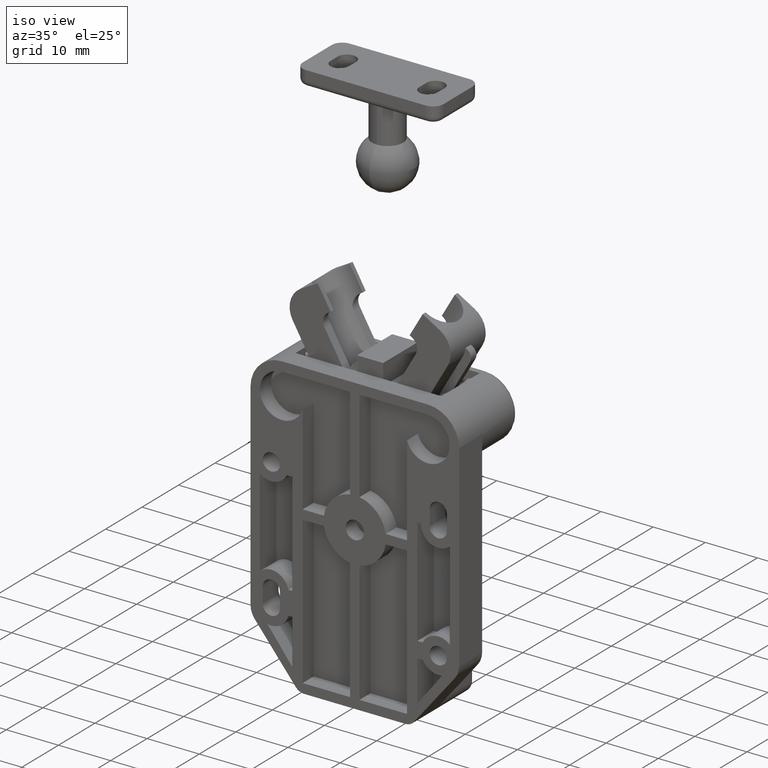
[diagram: clean part render]
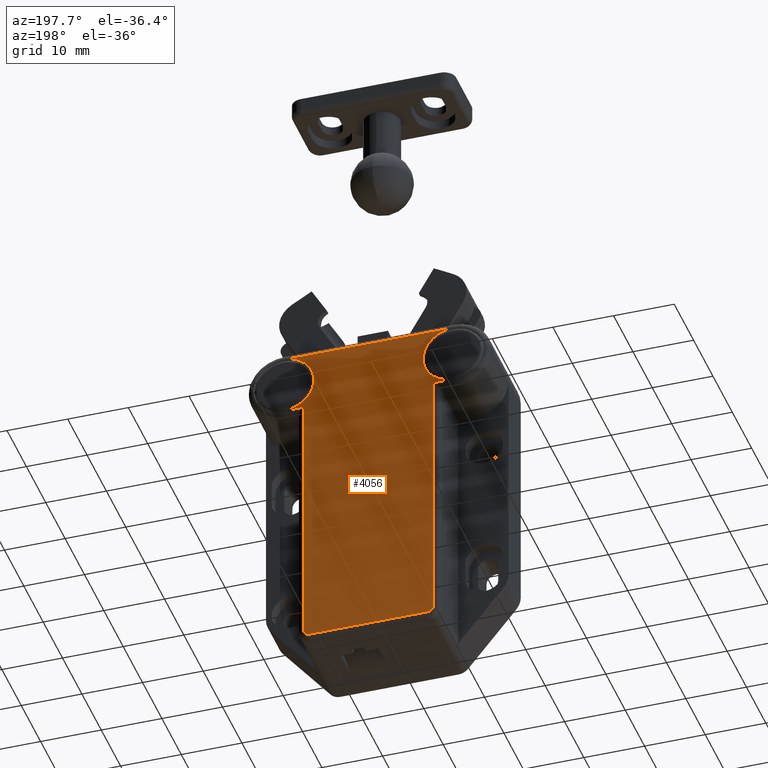
[diagram: tour spotlight — one face highlighted and labeled with its STEP entity id]
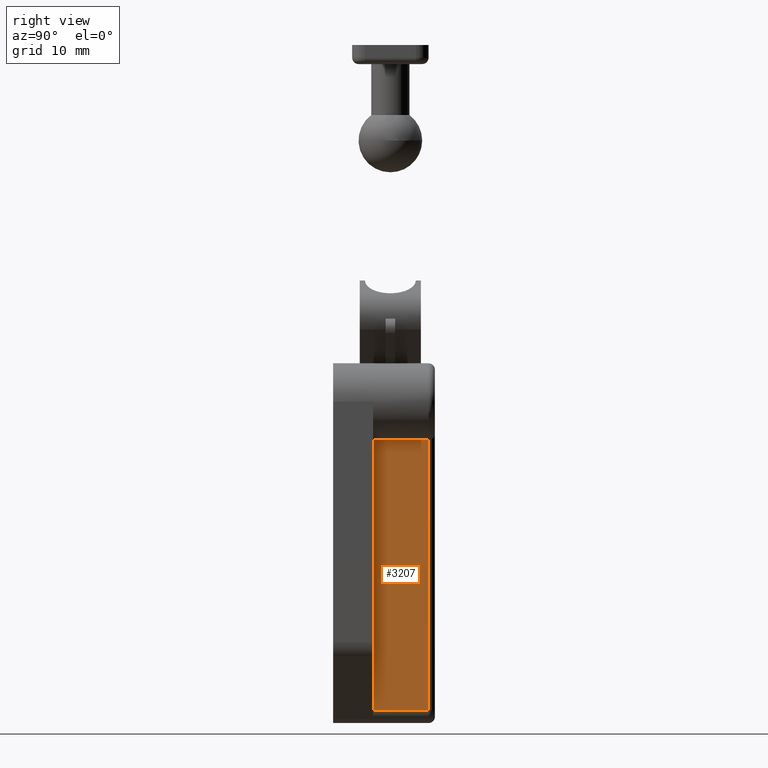
[diagram: tour spotlight — one face highlighted and labeled with its STEP entity id]
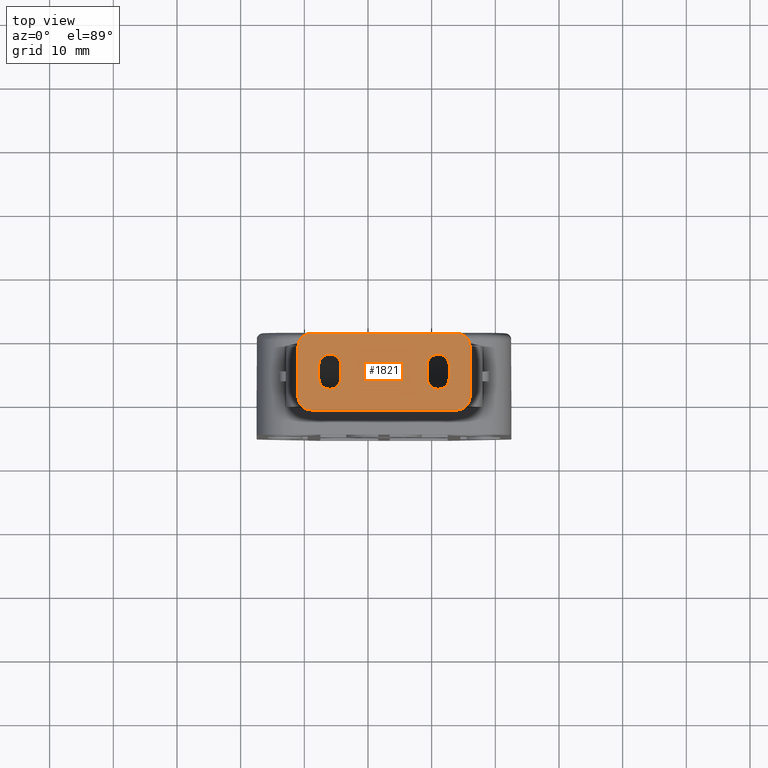
[diagram: tour spotlight — one face highlighted and labeled with its STEP entity id]
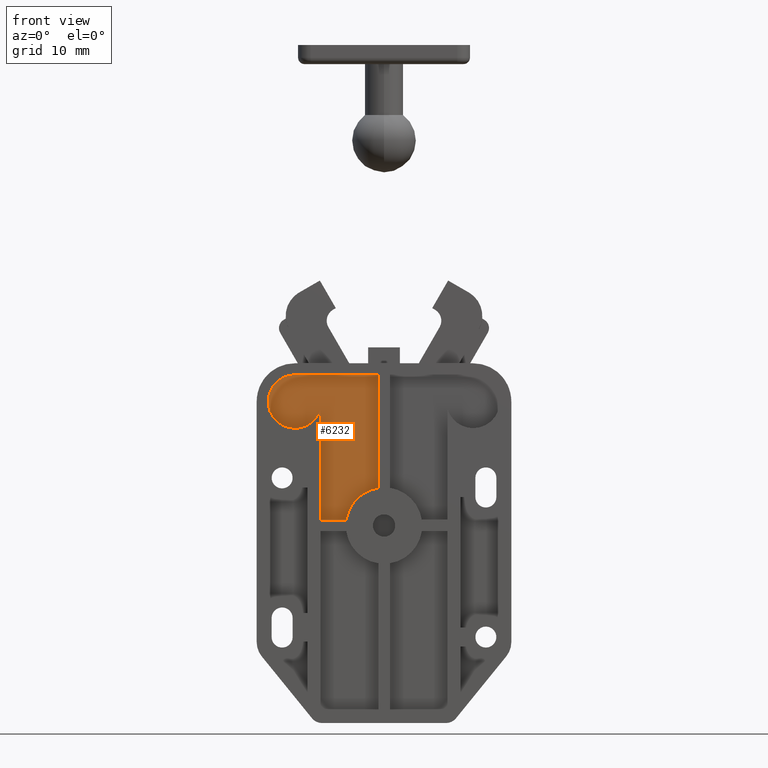
[diagram: tour spotlight — one face highlighted and labeled with its STEP entity id]
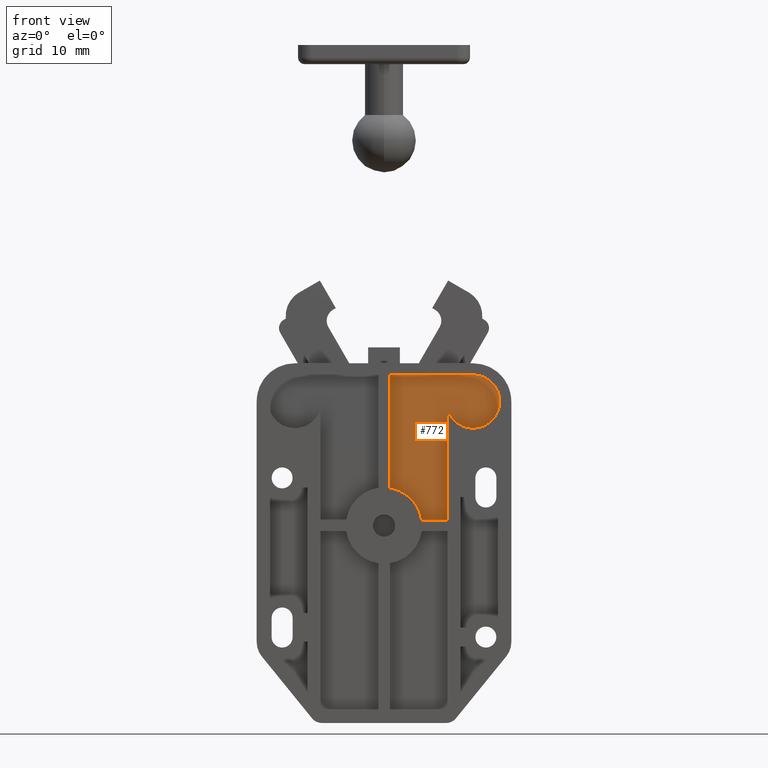
[diagram: tour spotlight — one face highlighted and labeled with its STEP entity id]
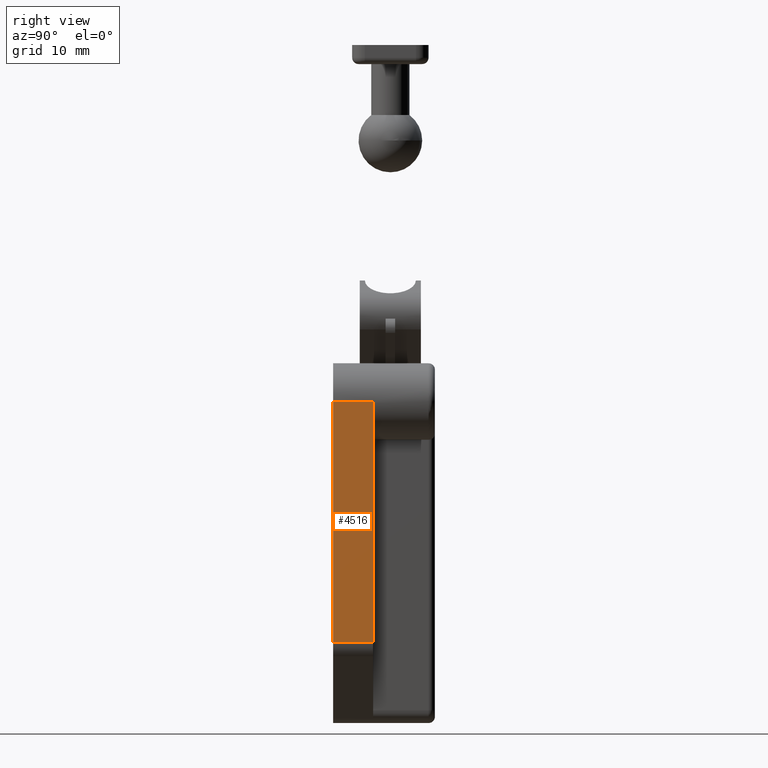
[diagram: tour spotlight — one face highlighted and labeled with its STEP entity id]
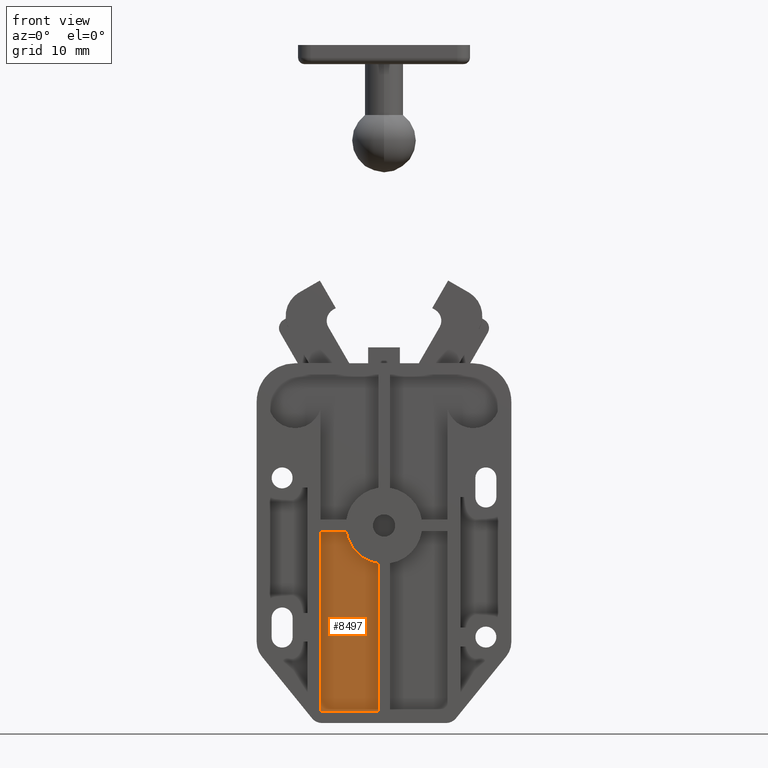
[diagram: tour spotlight — one face highlighted and labeled with its STEP entity id]
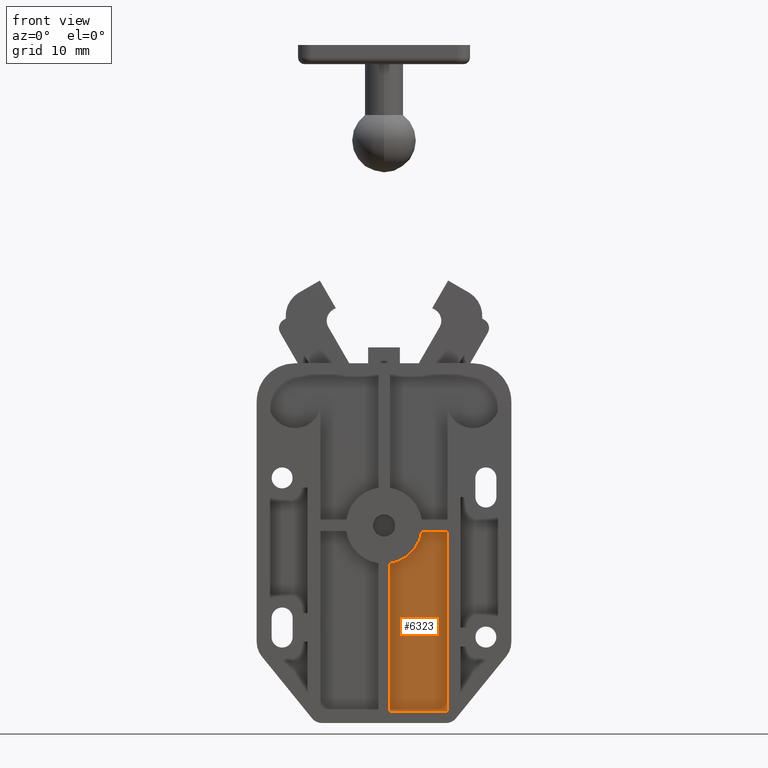
[diagram: tour spotlight — one face highlighted and labeled with its STEP entity id]
A machine part: a face-by-face anatomy tour. The part has 293 B-rep faces; the first image is the clean iso view, then the 8 largest visible faces are spotlighted one at a time (largest first), each with its STEP entity span.

Face 1 — auxiliary view, entity #4056. In plain terms, the highlighted planar face has unit normal (0, -1, -0).
Definition (entity closure, byte-faithful):
#63 = CIRCLE ( 'NONE', #2562, 4.999999999999726400 ) ;
#69 = AXIS2_PLACEMENT_3D ( 'NONE', #387, #5206, #1078 ) ;
#123 = DIRECTION ( 'NONE',  ( -1.000000000000000000, 0.0000000000000000000, 0.0000000000000000000 ) ) ;
#158 = ORIENTED_EDGE ( 'NONE', *, *, #5685, .F. ) ;
#161 = DIRECTION ( 'NONE',  ( 1.000000000000000000, 1.224510688924805600E-016, 0.0000000000000000000 ) ) ;
#177 = AXIS2_PLACEMENT_3D ( 'NONE', #3411, #5731, #123 ) ;
#289 = EDGE_CURVE ( 'NONE', #2306, #7049, #8553, .T. ) ;
#342 = AXIS2_PLACEMENT_3D ( 'NONE', #7529, #3380, #8229 ) ;
#352 = ORIENTED_EDGE ( 'NONE', *, *, #1644, .T. ) ;
#387 = CARTESIAN_POINT ( 'NONE',  ( 2.499599999999999600, 9.750000000000213200, 16.00000000000000000 ) ) ;
#388 = VERTEX_POINT ( 'NONE', #3801 ) ;
#394 = DIRECTION ( 'NONE',  ( -1.000000000000000000, 0.0000000000000000000, 0.0000000000000000000 ) ) ;
#472 = CIRCLE ( 'NONE', #6629, 4.999999999999726400 ) ;
#512 = DIRECTION ( 'NONE',  ( -0.0000000000000000000, -0.0000000000000000000, 1.000000000000000000 ) ) ;
#517 = CARTESIAN_POINT ( 'NONE',  ( 2.499600000000006300, 10.75000000000021700, 16.00000000000000000 ) ) ;
#536 = LINE ( 'NONE', #3874, #747 ) ;
#656 = AXIS2_PLACEMENT_3D ( 'NONE', #6320, #2870, #1356 ) ;
#747 = VECTOR ( 'NONE', #8232, 1000.000000000000000 ) ;
#851 = EDGE_CURVE ( 'NONE', #1639, #2233, #536, .T. ) ;
#911 = VERTEX_POINT ( 'NONE', #3838 ) ;
#933 = CARTESIAN_POINT ( 'NONE',  ( 1.499599999999996700, -9.749999999999758400, 16.00000000000000000 ) ) ;
#1009 = EDGE_CURVE ( 'NONE', #5705, #7769, #4951, .T. ) ;
#1078 = DIRECTION ( 'NONE',  ( -1.000000000000000000, 0.0000000000000000000, 0.0000000000000000000 ) ) ;
#1140 = CARTESIAN_POINT ( 'NONE',  ( 2.499600000000013800, -10.74999999999976600, 16.00000000000000000 ) ) ;
#1356 = DIRECTION ( 'NONE',  ( -1.000000000000000000, -1.040834085586084800E-015, 0.0000000000000000000 ) ) ;
#1357 = EDGE_CURVE ( 'NONE', #7049, #5705, #3178, .T. ) ;
#1401 = VERTEX_POINT ( 'NONE', #8539 ) ;
#1496 = EDGE_CURVE ( 'NONE', #2233, #8057, #7175, .T. ) ;
#1612 = CARTESIAN_POINT ( 'NONE',  ( 51.00000000000000000, 14.00000000000022000, 16.00000000000000000 ) ) ;
#1621 = ORIENTED_EDGE ( 'NONE', *, *, #289, .T. ) ;
#1639 = VERTEX_POINT ( 'NONE', #5607 ) ;
#1644 = EDGE_CURVE ( 'NONE', #7769, #7383, #7706, .T. ) ;
#1673 = EDGE_CURVE ( 'NONE', #8127, #1639, #6092, .T. ) ;
#1709 = AXIS2_PLACEMENT_3D ( 'NONE', #7407, #8103, #3945 ) ;
#1859 = DIRECTION ( 'NONE',  ( 0.0000000000000000000, -1.000000000000000000, 0.0000000000000000000 ) ) ;
#1886 = ORIENTED_EDGE ( 'NONE', *, *, #2466, .F. ) ;
#2058 = ORIENTED_EDGE ( 'NONE', *, *, #851, .T. ) ;
#2210 = ORIENTED_EDGE ( 'NONE', *, *, #6385, .T. ) ;
#2233 = VERTEX_POINT ( 'NONE', #2248 ) ;
#2248 = CARTESIAN_POINT ( 'NONE',  ( 45.99959999999999400, 10.75000000000021700, 16.00000000000000000 ) ) ;
#2306 = VERTEX_POINT ( 'NONE', #933 ) ;
#2309 = DIRECTION ( 'NONE',  ( 1.000000000000000000, 0.0000000000000000000, 0.0000000000000000000 ) ) ;
#2464 = DIRECTION ( 'NONE',  ( 0.0000000000000000000, 0.0000000000000000000, 1.000000000000000000 ) ) ;
#2466 = EDGE_CURVE ( 'NONE', #8127, #911, #472, .T. ) ;
#2537 = DIRECTION ( 'NONE',  ( -0.0000000000000000000, -0.0000000000000000000, 1.000000000000000000 ) ) ;
#2562 = AXIS2_PLACEMENT_3D ( 'NONE', #1612, #6444, #2309 ) ;
#2572 = CARTESIAN_POINT ( 'NONE',  ( 55.99959999999999400, -13.93675571174168400, 16.00000000000000000 ) ) ;
#2696 = ORIENTED_EDGE ( 'NONE', *, *, #2872, .F. ) ;
#2870 = DIRECTION ( 'NONE',  ( 0.0000000000000000000, 0.0000000000000000000, 1.000000000000000000 ) ) ;
#2872 = EDGE_CURVE ( 'NONE', #911, #1401, #63, .T. ) ;
#2989 = EDGE_CURVE ( 'NONE', #8057, #8645, #6566, .T. ) ;
#3144 = CARTESIAN_POINT ( 'NONE',  ( 1.499599999999999400, 9.750000000000199000, 16.00000000000000000 ) ) ;
#3178 = LINE ( 'NONE', #3850, #4789 ) ;
#3251 = PLANE ( 'NONE',  #1709 ) ;
#3380 = DIRECTION ( 'NONE',  ( -0.0000000000000000000, -0.0000000000000000000, 1.000000000000000000 ) ) ;
#3411 = CARTESIAN_POINT ( 'NONE',  ( 50.99960000000000100, -14.00000000000000000, 16.00000000000000000 ) ) ;
#3515 = DIRECTION ( 'NONE',  ( 0.0000000000000000000, 1.000000000000000000, 0.0000000000000000000 ) ) ;
#3705 = CARTESIAN_POINT ( 'NONE',  ( 45.99959999999999400, -13.99999999999976400, 16.00000000000000000 ) ) ;
#3801 = CARTESIAN_POINT ( 'NONE',  ( 46.00000000000027000, -13.99999999999975800, 16.00000000000000000 ) ) ;
#3838 = CARTESIAN_POINT ( 'NONE',  ( 46.00000000000027000, 14.00000000000022000, 16.00000000000000000 ) ) ;
#3850 = CARTESIAN_POINT ( 'NONE',  ( 50.99959999999999400, -10.74999999999976000, 16.00000000000000000 ) ) ;
#3874 = CARTESIAN_POINT ( 'NONE',  ( 45.99959999999991600, -13.99999999999975000, 16.00000000000000000 ) ) ;
#3939 = CARTESIAN_POINT ( 'NONE',  ( 50.99980000065051700, 18.99999999599997500, 16.00000000000000000 ) ) ;
#3945 = DIRECTION ( 'NONE',  ( -1.000000000000000000, 0.0000000000000000000, 0.0000000000000000000 ) ) ;
#4034 = AXIS2_PLACEMENT_3D ( 'NONE', #4623, #512, #5330 ) ;
#4056 = ADVANCED_FACE ( 'NONE', ( #7082 ), #3251, .F. ) ;
#4194 = ORIENTED_EDGE ( 'NONE', *, *, #1496, .T. ) ;
#4215 = LINE ( 'NONE', #7671, #6289 ) ;
#4218 = CIRCLE ( 'NONE', #4034, 4.999999999999726400 ) ;
#4299 = EDGE_LOOP ( 'NONE', ( #5245, #2210, #2696, #1886, #6159, #2058, #4194, #8235, #8885, #1621, #8895, #4638, #352, #158 ) ) ;
#4595 = CARTESIAN_POINT ( 'NONE',  ( 50.99959999999999400, 10.75000000000021700, 16.00000000000000000 ) ) ;
#4623 = CARTESIAN_POINT ( 'NONE',  ( 51.00000000000000000, -13.99999999999975800, 16.00000000000000000 ) ) ;
#4628 = VECTOR ( 'NONE', #1859, 1000.000000000000000 ) ;
#4638 = ORIENTED_EDGE ( 'NONE', *, *, #1009, .T. ) ;
#4789 = VECTOR ( 'NONE', #161, 1000.000000000000000 ) ;
#4951 = LINE ( 'NONE', #3705, #8435 ) ;
#5111 = AXIS2_PLACEMENT_3D ( 'NONE', #6127, #2464, #394 ) ;
#5206 = DIRECTION ( 'NONE',  ( 0.0000000000000000000, 0.0000000000000000000, 1.000000000000000000 ) ) ;
#5245 = ORIENTED_EDGE ( 'NONE', *, *, #7203, .F. ) ;
#5330 = DIRECTION ( 'NONE',  ( 1.000000000000000000, 0.0000000000000000000, 0.0000000000000000000 ) ) ;
#5607 = CARTESIAN_POINT ( 'NONE',  ( 45.99960000000000100, 14.00000000000017900, 16.00000000000000000 ) ) ;
#5685 = EDGE_CURVE ( 'NONE', #388, #7383, #4218, .T. ) ;
#5705 = VERTEX_POINT ( 'NONE', #6020 ) ;
#5731 = DIRECTION ( 'NONE',  ( 0.0000000000000000000, 0.0000000000000000000, 1.000000000000000000 ) ) ;
#5968 = CIRCLE ( 'NONE', #342, 4.999999999999726400 ) ;
#5993 = CARTESIAN_POINT ( 'NONE',  ( 1.499599999999996700, -13.99999999999976400, 16.00000000000000000 ) ) ;
#6020 = CARTESIAN_POINT ( 'NONE',  ( 45.99959999999999400, -10.74999999999976000, 16.00000000000000000 ) ) ;
#6092 = CIRCLE ( 'NONE', #656, 4.999999999999997300 ) ;
#6127 = CARTESIAN_POINT ( 'NONE',  ( 2.499599999999999200, -9.749999999999765500, 16.00000000000000000 ) ) ;
#6159 = ORIENTED_EDGE ( 'NONE', *, *, #1673, .T. ) ;
#6289 = VECTOR ( 'NONE', #3515, 1000.000000000000000 ) ;
#6320 = CARTESIAN_POINT ( 'NONE',  ( 50.99960000000000100, 14.00000000000000000, 16.00000000000000000 ) ) ;
#6356 = CARTESIAN_POINT ( 'NONE',  ( 45.99959999999999400, -13.99999999999976400, 16.00000000000000000 ) ) ;
#6385 = EDGE_CURVE ( 'NONE', #8169, #1401, #4215, .T. ) ;
#6444 = DIRECTION ( 'NONE',  ( -0.0000000000000000000, -0.0000000000000000000, 1.000000000000000000 ) ) ;
#6566 = CIRCLE ( 'NONE', #69, 1.000000000000000000 ) ;
#6629 = AXIS2_PLACEMENT_3D ( 'NONE', #6674, #2537, #7372 ) ;
#6674 = CARTESIAN_POINT ( 'NONE',  ( 51.00000000000000000, 14.00000000000022000, 16.00000000000000000 ) ) ;
#7049 = VERTEX_POINT ( 'NONE', #1140 ) ;
#7082 = FACE_OUTER_BOUND ( 'NONE', #4299, .T. ) ;
#7175 = LINE ( 'NONE', #4595, #8820 ) ;
#7203 = EDGE_CURVE ( 'NONE', #8169, #388, #5968, .T. ) ;
#7372 = DIRECTION ( 'NONE',  ( 1.000000000000000000, 0.0000000000000000000, 0.0000000000000000000 ) ) ;
#7383 = VERTEX_POINT ( 'NONE', #8412 ) ;
#7407 = CARTESIAN_POINT ( 'NONE',  ( 50.99959999999999400, -13.99999999999976400, 16.00000000000000000 ) ) ;
#7529 = CARTESIAN_POINT ( 'NONE',  ( 51.00000000000000000, -13.99999999999975800, 16.00000000000000000 ) ) ;
#7671 = CARTESIAN_POINT ( 'NONE',  ( 55.99959999999999400, 14.00000000000021500, 16.00000000000000000 ) ) ;
#7706 = CIRCLE ( 'NONE', #177, 4.999999999999997300 ) ;
#7751 = DIRECTION ( 'NONE',  ( -1.000000000000000000, 0.0000000000000000000, 0.0000000000000000000 ) ) ;
#7769 = VERTEX_POINT ( 'NONE', #6356 ) ;
#7835 = DIRECTION ( 'NONE',  ( 0.0000000000000000000, -1.000000000000000000, 0.0000000000000000000 ) ) ;
#8057 = VERTEX_POINT ( 'NONE', #517 ) ;
#8103 = DIRECTION ( 'NONE',  ( -0.0000000000000000000, 0.0000000000000000000, -1.000000000000000000 ) ) ;
#8127 = VERTEX_POINT ( 'NONE', #3939 ) ;
#8169 = VERTEX_POINT ( 'NONE', #2572 ) ;
#8229 = DIRECTION ( 'NONE',  ( 1.000000000000000000, 0.0000000000000000000, 0.0000000000000000000 ) ) ;
#8232 = DIRECTION ( 'NONE',  ( -3.083952846180988100E-015, -1.000000000000000000, 0.0000000000000000000 ) ) ;
#8235 = ORIENTED_EDGE ( 'NONE', *, *, #2989, .T. ) ;
#8330 = LINE ( 'NONE', #5993, #4628 ) ;
#8412 = CARTESIAN_POINT ( 'NONE',  ( 50.99980000641847500, -18.99999999599974400, 16.00000000000000000 ) ) ;
#8435 = VECTOR ( 'NONE', #7835, 1000.000000000000000 ) ;
#8539 = CARTESIAN_POINT ( 'NONE',  ( 55.99959999999999400, 13.93675571174214400, 16.00000000000000000 ) ) ;
#8553 = CIRCLE ( 'NONE', #5111, 1.000000000000000000 ) ;
#8645 = VERTEX_POINT ( 'NONE', #3144 ) ;
#8717 = EDGE_CURVE ( 'NONE', #8645, #2306, #8330, .T. ) ;
#8820 = VECTOR ( 'NONE', #7751, 1000.000000000000000 ) ;
#8885 = ORIENTED_EDGE ( 'NONE', *, *, #8717, .T. ) ;
#8895 = ORIENTED_EDGE ( 'NONE', *, *, #1357, .T. ) ;

Face 2 — right view, entity #3207. In plain terms, the highlighted planar face has unit normal (-1, -0, 0).
Definition (entity closure, byte-faithful):
#24 = VECTOR ( 'NONE', #2225, 1000.000000000000000 ) ;
#104 = EDGE_LOOP ( 'NONE', ( #3995, #4023, #1525, #7930 ) ) ;
#355 = VERTEX_POINT ( 'NONE', #3010 ) ;
#366 = CARTESIAN_POINT ( 'NONE',  ( 2.499600000000013400, 11.75000000000021300, 15.00000000000000000 ) ) ;
#511 = CARTESIAN_POINT ( 'NONE',  ( 2.499600000000013400, 11.75000000000021300, 16.00000000000000000 ) ) ;
#1170 = FACE_OUTER_BOUND ( 'NONE', #104, .T. ) ;
#1525 = ORIENTED_EDGE ( 'NONE', *, *, #6835, .T. ) ;
#1556 = CARTESIAN_POINT ( 'NONE',  ( 44.99959999999999400, 11.75000000000021300, 16.00000000000000000 ) ) ;
#2057 = VECTOR ( 'NONE', #3241, 1000.000000000000000 ) ;
#2225 = DIRECTION ( 'NONE',  ( -0.0000000000000000000, -0.0000000000000000000, -1.000000000000000000 ) ) ;
#2292 = LINE ( 'NONE', #1556, #24 ) ;
#2662 = DIRECTION ( 'NONE',  ( 0.0000000000000000000, -0.0000000000000000000, -1.000000000000000000 ) ) ;
#2799 = DIRECTION ( 'NONE',  ( 1.000000000000000000, -0.0000000000000000000, -0.0000000000000000000 ) ) ;
#3010 = CARTESIAN_POINT ( 'NONE',  ( 2.499600000000013800, 11.74999999999976600, 6.300000000000158800 ) ) ;
#3041 = LINE ( 'NONE', #4157, #4440 ) ;
#3207 = ADVANCED_FACE ( 'NONE', ( #1170 ), #8853, .F. ) ;
#3241 = DIRECTION ( 'NONE',  ( -0.0000000000000000000, -0.0000000000000000000, -1.000000000000000000 ) ) ;
#3573 = VECTOR ( 'NONE', #8733, 1000.000000000000000 ) ;
#3847 = CARTESIAN_POINT ( 'NONE',  ( 2.499600000000013800, 11.74999999999976600, 6.300000000000158800 ) ) ;
#3995 = ORIENTED_EDGE ( 'NONE', *, *, #8132, .F. ) ;
#4023 = ORIENTED_EDGE ( 'NONE', *, *, #6372, .T. ) ;
#4157 = CARTESIAN_POINT ( 'NONE',  ( 2.499600000000013400, 11.75000000000021300, 15.00000000000000000 ) ) ;
#4440 = VECTOR ( 'NONE', #2799, 1000.000000000000000 ) ;
#4449 = VERTEX_POINT ( 'NONE', #4914 ) ;
#4914 = CARTESIAN_POINT ( 'NONE',  ( 44.99959999999999400, 11.74999999999976000, 6.300000000000158800 ) ) ;
#5292 = LINE ( 'NONE', #511, #2057 ) ;
#5411 = CARTESIAN_POINT ( 'NONE',  ( 2.499600000000013400, 11.75000000000021300, 16.00000000000000000 ) ) ;
#5430 = LINE ( 'NONE', #3847, #3573 ) ;
#5901 = CARTESIAN_POINT ( 'NONE',  ( 44.99959999999999400, 11.75000000000021300, 15.00000000000000000 ) ) ;
#6107 = VERTEX_POINT ( 'NONE', #5901 ) ;
#6372 = EDGE_CURVE ( 'NONE', #7934, #6107, #3041, .T. ) ;
#6797 = DIRECTION ( 'NONE',  ( 0.0000000000000000000, -1.000000000000000000, 0.0000000000000000000 ) ) ;
#6835 = EDGE_CURVE ( 'NONE', #6107, #4449, #2292, .T. ) ;
#7018 = EDGE_CURVE ( 'NONE', #4449, #355, #5430, .T. ) ;
#7930 = ORIENTED_EDGE ( 'NONE', *, *, #7018, .T. ) ;
#7934 = VERTEX_POINT ( 'NONE', #366 ) ;
#7972 = AXIS2_PLACEMENT_3D ( 'NONE', #5411, #6797, #2662 ) ;
#8132 = EDGE_CURVE ( 'NONE', #7934, #355, #5292, .T. ) ;
#8733 = DIRECTION ( 'NONE',  ( -1.000000000000000000, 1.224510688924805600E-016, -0.0000000000000000000 ) ) ;
#8853 = PLANE ( 'NONE',  #7972 ) ;

Face 3 — top view, entity #1821. In plain terms, the highlighted planar face has unit normal (-0, 0, -1).
Definition (entity closure, byte-faithful):
#2 = DIRECTION ( 'NONE',  ( 1.000000000000000000, -0.0000000000000000000, -0.0000000000000000000 ) ) ;
#80 = LINE ( 'NONE', #4538, #5384 ) ;
#129 = ORIENTED_EDGE ( 'NONE', *, *, #921, .T. ) ;
#265 = CARTESIAN_POINT ( 'NONE',  ( 122.1906854006600000, 145.7423681696269900, 4.999999999999889900 ) ) ;
#282 = CARTESIAN_POINT ( 'NONE',  ( 122.1906854006600000, 118.7423681696272000, 13.00000000000002100 ) ) ;
#302 = ORIENTED_EDGE ( 'NONE', *, *, #5066, .T. ) ;
#409 = DIRECTION ( 'NONE',  ( -1.000000000000000000, 0.0000000000000000000, 0.0000000000000000000 ) ) ;
#429 = AXIS2_PLACEMENT_3D ( 'NONE', #6768, #2626, #7456 ) ;
#476 = CARTESIAN_POINT ( 'NONE',  ( 122.1906854006600000, 138.9923681696272100, 9.999999999999889900 ) ) ;
#497 = AXIS2_PLACEMENT_3D ( 'NONE', #7296, #2444, #1752 ) ;
#500 = CARTESIAN_POINT ( 'NONE',  ( 122.1906854006600000, 123.7423681696272100, 9.999999999999889900 ) ) ;
#635 = VERTEX_POINT ( 'NONE', #3393 ) ;
#665 = EDGE_CURVE ( 'NONE', #3332, #4189, #2246, .T. ) ;
#735 = CARTESIAN_POINT ( 'NONE',  ( 122.1906854006600000, 143.7423681696269900, 2.999999999999889900 ) ) ;
#758 = EDGE_CURVE ( 'NONE', #2568, #1711, #8542, .T. ) ;
#779 = VERTEX_POINT ( 'NONE', #265 ) ;
#788 = EDGE_LOOP ( 'NONE', ( #1043, #6619, #129, #2095, #3521, #8567, #4824, #2368 ) ) ;
#835 = EDGE_CURVE ( 'NONE', #779, #5222, #8329, .T. ) ;
#885 = CARTESIAN_POINT ( 'NONE',  ( 122.1906854006600000, 145.7423681696269900, 13.00000000000002000 ) ) ;
#921 = EDGE_CURVE ( 'NONE', #2911, #6814, #80, .T. ) ;
#939 = AXIS2_PLACEMENT_3D ( 'NONE', #5931, #409, #3121 ) ;
#1043 = ORIENTED_EDGE ( 'NONE', *, *, #1578, .F. ) ;
#1190 = DIRECTION ( 'NONE',  ( 0.0000000000000000000, 0.0000000000000000000, -1.000000000000000000 ) ) ;
#1225 = VECTOR ( 'NONE', #2768, 1000.000000000000000 ) ;
#1494 = VERTEX_POINT ( 'NONE', #3767 ) ;
#1578 = EDGE_CURVE ( 'NONE', #7788, #1893, #6739, .T. ) ;
#1580 = AXIS2_PLACEMENT_3D ( 'NONE', #5530, #2, #8302 ) ;
#1697 = EDGE_CURVE ( 'NONE', #7788, #2911, #1989, .T. ) ;
#1706 = CARTESIAN_POINT ( 'NONE',  ( 122.1906854006600000, 145.7423681696269900, 2.999999999999889400 ) ) ;
#1711 = VERTEX_POINT ( 'NONE', #735 ) ;
#1715 = DIRECTION ( 'NONE',  ( 0.0000000000000000000, 0.0000000000000000000, -1.000000000000000000 ) ) ;
#1716 = CARTESIAN_POINT ( 'NONE',  ( 122.1906854006600000, 121.9923681696272000, 7.999999999999889000 ) ) ;
#1737 = LINE ( 'NONE', #6559, #7020 ) ;
#1750 = VERTEX_POINT ( 'NONE', #3589 ) ;
#1752 = DIRECTION ( 'NONE',  ( 0.0000000000000000000, 0.0000000000000000000, 1.000000000000000000 ) ) ;
#1821 = ADVANCED_FACE ( 'NONE', ( #3906, #7384, #7588 ), #2431, .F. ) ;
#1823 = EDGE_CURVE ( 'NONE', #6814, #2568, #5525, .T. ) ;
#1839 = CARTESIAN_POINT ( 'NONE',  ( 122.1906854006600200, 143.7423681696269900, 15.00000000000002000 ) ) ;
#1893 = VERTEX_POINT ( 'NONE', #1839 ) ;
#1918 = DIRECTION ( 'NONE',  ( -0.0000000000000000000, -0.0000000000000000000, 1.000000000000000000 ) ) ;
#1921 = EDGE_CURVE ( 'NONE', #635, #1494, #8718, .T. ) ;
#1989 = CIRCLE ( 'NONE', #1580, 2.000000000000000000 ) ;
#2095 = ORIENTED_EDGE ( 'NONE', *, *, #1823, .T. ) ;
#2246 = CIRCLE ( 'NONE', #7260, 1.749999999999994700 ) ;
#2312 = CARTESIAN_POINT ( 'NONE',  ( 122.1906854006600000, 143.7423681696269900, 13.00000000000002000 ) ) ;
#2368 = ORIENTED_EDGE ( 'NONE', *, *, #5482, .T. ) ;
#2423 = AXIS2_PLACEMENT_3D ( 'NONE', #6979, #2841, #7672 ) ;
#2431 = PLANE ( 'NONE',  #939 ) ;
#2444 = DIRECTION ( 'NONE',  ( 1.000000000000000000, -0.0000000000000000000, -0.0000000000000000000 ) ) ;
#2463 = VERTEX_POINT ( 'NONE', #3877 ) ;
#2540 = EDGE_CURVE ( 'NONE', #6144, #2463, #3270, .T. ) ;
#2568 = VERTEX_POINT ( 'NONE', #3999 ) ;
#2626 = DIRECTION ( 'NONE',  ( -1.000000000000000000, 0.0000000000000000000, 0.0000000000000000000 ) ) ;
#2768 = DIRECTION ( 'NONE',  ( 0.0000000000000000000, 0.0000000000000000000, -1.000000000000000000 ) ) ;
#2775 = DIRECTION ( 'NONE',  ( -1.000000000000000000, 0.0000000000000000000, 0.0000000000000000000 ) ) ;
#2796 = ORIENTED_EDGE ( 'NONE', *, *, #6740, .T. ) ;
#2833 = VECTOR ( 'NONE', #3516, 1000.000000000000000 ) ;
#2841 = DIRECTION ( 'NONE',  ( -1.000000000000000000, 0.0000000000000000000, 0.0000000000000000000 ) ) ;
#2853 = EDGE_CURVE ( 'NONE', #6001, #635, #7636, .T. ) ;
#2911 = VERTEX_POINT ( 'NONE', #282 ) ;
#2932 = CARTESIAN_POINT ( 'NONE',  ( 122.1906854006600000, 125.4923681696272000, 7.999999999999889000 ) ) ;
#2949 = CARTESIAN_POINT ( 'NONE',  ( 122.1906854006600200, 120.7423681696272000, 15.00000000000002000 ) ) ;
#2973 = AXIS2_PLACEMENT_3D ( 'NONE', #6923, #2775, #7623 ) ;
#2991 = DIRECTION ( 'NONE',  ( 0.0000000000000000000, 0.0000000000000000000, 1.000000000000000000 ) ) ;
#3004 = VECTOR ( 'NONE', #7206, 1000.000000000000000 ) ;
#3086 = CARTESIAN_POINT ( 'NONE',  ( 122.1906854006600000, 123.7423681696272100, 7.999999999999889000 ) ) ;
#3121 = DIRECTION ( 'NONE',  ( 0.0000000000000000000, 0.0000000000000000000, 1.000000000000000000 ) ) ;
#3270 = CIRCLE ( 'NONE', #429, 1.749999999999987600 ) ;
#3332 = VERTEX_POINT ( 'NONE', #1716 ) ;
#3354 = ORIENTED_EDGE ( 'NONE', *, *, #1921, .F. ) ;
#3393 = CARTESIAN_POINT ( 'NONE',  ( 122.1906854006600000, 125.4923681696272000, 9.999999999999889900 ) ) ;
#3516 = DIRECTION ( 'NONE',  ( -0.0000000000000000000, 1.000000000000000000, -0.0000000000000000000 ) ) ;
#3521 = ORIENTED_EDGE ( 'NONE', *, *, #758, .T. ) ;
#3589 = CARTESIAN_POINT ( 'NONE',  ( 122.1906854006600200, 138.9923681696272100, 7.999999999999889000 ) ) ;
#3645 = ORIENTED_EDGE ( 'NONE', *, *, #8575, .F. ) ;
#3679 = CARTESIAN_POINT ( 'NONE',  ( 122.1906854006600000, 143.7423681696269900, 4.999999999999889900 ) ) ;
#3729 = AXIS2_PLACEMENT_3D ( 'NONE', #2312, #7145, #2991 ) ;
#3759 = DIRECTION ( 'NONE',  ( 0.0000000000000000000, 0.0000000000000000000, -1.000000000000000000 ) ) ;
#3767 = CARTESIAN_POINT ( 'NONE',  ( 122.1906854006600000, 121.9923681696272000, 9.999999999999889900 ) ) ;
#3799 = EDGE_CURVE ( 'NONE', #1750, #6144, #6769, .T. ) ;
#3877 = CARTESIAN_POINT ( 'NONE',  ( 122.1906854006600200, 140.7423681696271800, 11.74999999999987700 ) ) ;
#3906 = FACE_BOUND ( 'NONE', #5939, .T. ) ;
#3999 = CARTESIAN_POINT ( 'NONE',  ( 122.1906854006600000, 120.7423681696272000, 2.999999999999893900 ) ) ;
#4116 = ORIENTED_EDGE ( 'NONE', *, *, #2853, .F. ) ;
#4164 = AXIS2_PLACEMENT_3D ( 'NONE', #500, #5310, #1190 ) ;
#4189 = VERTEX_POINT ( 'NONE', #8256 ) ;
#4203 = EDGE_LOOP ( 'NONE', ( #4116, #3645, #7942, #5691, #3354 ) ) ;
#4375 = DIRECTION ( 'NONE',  ( 0.0000000000000000000, 0.0000000000000000000, 1.000000000000000000 ) ) ;
#4409 = AXIS2_PLACEMENT_3D ( 'NONE', #3679, #8546, #4375 ) ;
#4431 = EDGE_CURVE ( 'NONE', #1711, #779, #5655, .T. ) ;
#4538 = CARTESIAN_POINT ( 'NONE',  ( 122.1906854006600000, 118.7423681696272000, 2.999999999999894300 ) ) ;
#4570 = CIRCLE ( 'NONE', #2423, 1.749999999999987600 ) ;
#4613 = VECTOR ( 'NONE', #8495, 1000.000000000000000 ) ;
#4824 = ORIENTED_EDGE ( 'NONE', *, *, #835, .T. ) ;
#4865 = AXIS2_PLACEMENT_3D ( 'NONE', #3086, #7932, #3759 ) ;
#4916 = VECTOR ( 'NONE', #5618, 1000.000000000000000 ) ;
#5066 = EDGE_CURVE ( 'NONE', #7168, #1750, #5544, .T. ) ;
#5222 = VERTEX_POINT ( 'NONE', #885 ) ;
#5310 = DIRECTION ( 'NONE',  ( 1.000000000000000000, 0.0000000000000000000, 0.0000000000000000000 ) ) ;
#5384 = VECTOR ( 'NONE', #6606, 1000.000000000000000 ) ;
#5482 = EDGE_CURVE ( 'NONE', #5222, #1893, #5976, .T. ) ;
#5525 = CIRCLE ( 'NONE', #497, 2.000000000000000000 ) ;
#5530 = CARTESIAN_POINT ( 'NONE',  ( 122.1906854006600000, 120.7423681696272000, 13.00000000000002000 ) ) ;
#5544 = CIRCLE ( 'NONE', #2973, 1.749999999999987600 ) ;
#5618 = DIRECTION ( 'NONE',  ( 0.0000000000000000000, 0.0000000000000000000, 1.000000000000000000 ) ) ;
#5655 = CIRCLE ( 'NONE', #4409, 2.000000000000000000 ) ;
#5691 = ORIENTED_EDGE ( 'NONE', *, *, #7907, .F. ) ;
#5931 = CARTESIAN_POINT ( 'NONE',  ( 122.1906854006600000, 0.0000000000000000000, 0.0000000000000000000 ) ) ;
#5939 = EDGE_LOOP ( 'NONE', ( #5989, #302, #8793, #8756, #2796 ) ) ;
#5976 = CIRCLE ( 'NONE', #3729, 2.000000000000000000 ) ;
#5989 = ORIENTED_EDGE ( 'NONE', *, *, #6338, .T. ) ;
#6001 = VERTEX_POINT ( 'NONE', #7036 ) ;
#6039 = VECTOR ( 'NONE', #1918, 1000.000000000000000 ) ;
#6048 = CARTESIAN_POINT ( 'NONE',  ( 122.1906854006600000, 145.7423681696269900, 11.99999999999993200 ) ) ;
#6141 = CARTESIAN_POINT ( 'NONE',  ( 122.1906854006600200, 145.7423681696269900, 15.00000000000002000 ) ) ;
#6144 = VERTEX_POINT ( 'NONE', #476 ) ;
#6277 = CARTESIAN_POINT ( 'NONE',  ( 122.1906854006600200, 142.4923681696271800, 9.999999999999889900 ) ) ;
#6338 = EDGE_CURVE ( 'NONE', #7681, #7168, #6514, .T. ) ;
#6514 = LINE ( 'NONE', #6916, #1225 ) ;
#6559 = CARTESIAN_POINT ( 'NONE',  ( 122.1906854006600000, 121.9923681696272000, 9.999999999999889900 ) ) ;
#6606 = DIRECTION ( 'NONE',  ( -0.0000000000000000000, -0.0000000000000000000, -1.000000000000000000 ) ) ;
#6619 = ORIENTED_EDGE ( 'NONE', *, *, #1697, .T. ) ;
#6739 = LINE ( 'NONE', #6141, #2833 ) ;
#6740 = EDGE_CURVE ( 'NONE', #2463, #7681, #4570, .T. ) ;
#6768 = CARTESIAN_POINT ( 'NONE',  ( 122.1906854006600200, 140.7423681696271800, 9.999999999999889900 ) ) ;
#6769 = LINE ( 'NONE', #8462, #4916 ) ;
#6814 = VERTEX_POINT ( 'NONE', #6999 ) ;
#6916 = CARTESIAN_POINT ( 'NONE',  ( 122.1906854006600200, 142.4923681696271800, 9.999999999999889900 ) ) ;
#6923 = CARTESIAN_POINT ( 'NONE',  ( 122.1906854006600200, 140.7423681696271800, 7.999999999999889000 ) ) ;
#6979 = CARTESIAN_POINT ( 'NONE',  ( 122.1906854006600200, 140.7423681696271800, 9.999999999999889900 ) ) ;
#6999 = CARTESIAN_POINT ( 'NONE',  ( 122.1906854006600000, 118.7423681696272000, 4.999999999999894300 ) ) ;
#7001 = DIRECTION ( 'NONE',  ( 0.0000000000000000000, 0.0000000000000000000, -1.000000000000000000 ) ) ;
#7020 = VECTOR ( 'NONE', #1715, 1000.000000000000000 ) ;
#7036 = CARTESIAN_POINT ( 'NONE',  ( 122.1906854006600000, 125.4923681696272000, 7.999999999999889000 ) ) ;
#7145 = DIRECTION ( 'NONE',  ( 1.000000000000000000, -0.0000000000000000000, -0.0000000000000000000 ) ) ;
#7168 = VERTEX_POINT ( 'NONE', #8868 ) ;
#7206 = DIRECTION ( 'NONE',  ( -0.0000000000000000000, 1.000000000000000000, -1.766847984791206400E-016 ) ) ;
#7260 = AXIS2_PLACEMENT_3D ( 'NONE', #8185, #8398, #7001 ) ;
#7296 = CARTESIAN_POINT ( 'NONE',  ( 122.1906854006600000, 120.7423681696272000, 4.999999999999894300 ) ) ;
#7384 = FACE_BOUND ( 'NONE', #4203, .T. ) ;
#7456 = DIRECTION ( 'NONE',  ( 0.0000000000000000000, 0.0000000000000000000, 1.000000000000000000 ) ) ;
#7557 = CIRCLE ( 'NONE', #4865, 1.749999999999994700 ) ;
#7588 = FACE_OUTER_BOUND ( 'NONE', #788, .T. ) ;
#7623 = DIRECTION ( 'NONE',  ( 0.0000000000000000000, 0.0000000000000000000, 1.000000000000000000 ) ) ;
#7636 = LINE ( 'NONE', #2932, #4613 ) ;
#7672 = DIRECTION ( 'NONE',  ( 0.0000000000000000000, 0.0000000000000000000, 1.000000000000000000 ) ) ;
#7681 = VERTEX_POINT ( 'NONE', #6277 ) ;
#7788 = VERTEX_POINT ( 'NONE', #2949 ) ;
#7907 = EDGE_CURVE ( 'NONE', #1494, #3332, #1737, .T. ) ;
#7932 = DIRECTION ( 'NONE',  ( 1.000000000000000000, 0.0000000000000000000, 0.0000000000000000000 ) ) ;
#7942 = ORIENTED_EDGE ( 'NONE', *, *, #665, .F. ) ;
#8185 = CARTESIAN_POINT ( 'NONE',  ( 122.1906854006600000, 123.7423681696272100, 7.999999999999889000 ) ) ;
#8256 = CARTESIAN_POINT ( 'NONE',  ( 122.1906854006600000, 123.7423681696272100, 6.249999999999894300 ) ) ;
#8302 = DIRECTION ( 'NONE',  ( 0.0000000000000000000, 0.0000000000000000000, 1.000000000000000000 ) ) ;
#8329 = LINE ( 'NONE', #6048, #6039 ) ;
#8398 = DIRECTION ( 'NONE',  ( 1.000000000000000000, 0.0000000000000000000, 0.0000000000000000000 ) ) ;
#8462 = CARTESIAN_POINT ( 'NONE',  ( 122.1906854006600200, 138.9923681696272100, 7.999999999999889000 ) ) ;
#8495 = DIRECTION ( 'NONE',  ( 0.0000000000000000000, 0.0000000000000000000, 1.000000000000000000 ) ) ;
#8542 = LINE ( 'NONE', #1706, #3004 ) ;
#8546 = DIRECTION ( 'NONE',  ( 1.000000000000000000, -0.0000000000000000000, -0.0000000000000000000 ) ) ;
#8567 = ORIENTED_EDGE ( 'NONE', *, *, #4431, .T. ) ;
#8575 = EDGE_CURVE ( 'NONE', #4189, #6001, #7557, .T. ) ;
#8718 = CIRCLE ( 'NONE', #4164, 1.749999999999994700 ) ;
#8756 = ORIENTED_EDGE ( 'NONE', *, *, #2540, .T. ) ;
#8793 = ORIENTED_EDGE ( 'NONE', *, *, #3799, .T. ) ;
#8868 = CARTESIAN_POINT ( 'NONE',  ( 122.1906854006600200, 142.4923681696271800, 7.999999999999889000 ) ) ;

Face 4 — front view, entity #6232. In plain terms, the highlighted planar face has unit normal (-0, 1, 0).
Definition (entity closure, byte-faithful):
#205 = CARTESIAN_POINT ( 'NONE',  ( 37.43171597998549800, -0.9000000000000000200, 3.000000000000000000 ) ) ;
#218 = CARTESIAN_POINT ( 'NONE',  ( 55.19960000000000400, -0.9000000000000000200, 3.000000000000000000 ) ) ;
#238 = EDGE_CURVE ( 'NONE', #6497, #5345, #8779, .T. ) ;
#383 = EDGE_CURVE ( 'NONE', #5345, #5320, #7900, .T. ) ;
#534 = VERTEX_POINT ( 'NONE', #7867 ) ;
#633 = DIRECTION ( 'NONE',  ( 0.0000000000000000000, -0.0000000000000000000, 1.000000000000000000 ) ) ;
#787 = ORIENTED_EDGE ( 'NONE', *, *, #4156, .T. ) ;
#915 = EDGE_CURVE ( 'NONE', #8814, #6497, #3977, .T. ) ;
#1369 = AXIS2_PLACEMENT_3D ( 'NONE', #8038, #3860, #6491 ) ;
#1635 = ORIENTED_EDGE ( 'NONE', *, *, #915, .T. ) ;
#1881 = CARTESIAN_POINT ( 'NONE',  ( 50.99960000000000100, -14.00000000000000000, 3.000000000000000000 ) ) ;
#2271 = ORIENTED_EDGE ( 'NONE', *, *, #383, .T. ) ;
#2319 = CIRCLE ( 'NONE', #4477, 5.999999999999963600 ) ;
#2329 = AXIS2_PLACEMENT_3D ( 'NONE', #1881, #8722, #5090 ) ;
#2366 = VECTOR ( 'NONE', #3108, 1000.000000000000000 ) ;
#2388 = EDGE_LOOP ( 'NONE', ( #6631, #1635, #4995, #2271, #7088, #787, #2507 ) ) ;
#2507 = ORIENTED_EDGE ( 'NONE', *, *, #6877, .T. ) ;
#2541 = CARTESIAN_POINT ( 'NONE',  ( 55.19960000000000400, -0.9000000000000000200, 3.000000000000000000 ) ) ;
#2601 = CARTESIAN_POINT ( 'NONE',  ( 31.49960000000000100, 0.0000000000000000000, 3.000000000000000000 ) ) ;
#3060 = CARTESIAN_POINT ( 'NONE',  ( 32.39960000000000000, -10.00000000000000000, 3.000000000000000000 ) ) ;
#3108 = DIRECTION ( 'NONE',  ( -1.000000000000000000, 0.0000000000000000000, 0.0000000000000000000 ) ) ;
#3162 = VECTOR ( 'NONE', #3229, 1000.000000000000000 ) ;
#3191 = CARTESIAN_POINT ( 'NONE',  ( 32.39960000000000000, -10.00000000000000000, 3.000000000000000000 ) ) ;
#3229 = DIRECTION ( 'NONE',  ( 0.0000000000000000000, -1.000000000000000000, 0.0000000000000000000 ) ) ;
#3306 = DIRECTION ( 'NONE',  ( 0.0000000000000000000, -0.0000000000000000000, 1.000000000000000000 ) ) ;
#3860 = DIRECTION ( 'NONE',  ( -0.0000000000000000000, -0.0000000000000000000, -1.000000000000000000 ) ) ;
#3977 = CIRCLE ( 'NONE', #1369, 4.200000000000002000 ) ;
#4147 = AXIS2_PLACEMENT_3D ( 'NONE', #2601, #3306, #8154 ) ;
#4156 = EDGE_CURVE ( 'NONE', #6238, #534, #2319, .T. ) ;
#4338 = DIRECTION ( 'NONE',  ( 1.000000000000000000, 0.0000000000000000000, 0.0000000000000000000 ) ) ;
#4436 = VERTEX_POINT ( 'NONE', #218 ) ;
#4477 = AXIS2_PLACEMENT_3D ( 'NONE', #4751, #633, #5460 ) ;
#4751 = CARTESIAN_POINT ( 'NONE',  ( 31.49960000000000100, 0.0000000000000000000, 3.000000000000000000 ) ) ;
#4856 = EDGE_CURVE ( 'NONE', #5320, #6238, #6312, .T. ) ;
#4995 = ORIENTED_EDGE ( 'NONE', *, *, #238, .T. ) ;
#5018 = CARTESIAN_POINT ( 'NONE',  ( 55.19960000000000400, -10.00000000000000000, 3.000000000000000000 ) ) ;
#5090 = DIRECTION ( 'NONE',  ( -1.000000000000000000, 0.0000000000000000000, 0.0000000000000000000 ) ) ;
#5320 = VERTEX_POINT ( 'NONE', #3060 ) ;
#5345 = VERTEX_POINT ( 'NONE', #5798 ) ;
#5357 = CARTESIAN_POINT ( 'NONE',  ( 32.39960000000000000, -5.932115979985550100, 3.000000000000000000 ) ) ;
#5460 = DIRECTION ( 'NONE',  ( 1.000000000000000000, 0.0000000000000000000, 0.0000000000000000000 ) ) ;
#5798 = CARTESIAN_POINT ( 'NONE',  ( 49.71897515251343000, -10.00000000000000000, 3.000000000000000000 ) ) ;
#6232 = ADVANCED_FACE ( 'NONE', ( #7589 ), #6754, .F. ) ;
#6238 = VERTEX_POINT ( 'NONE', #5357 ) ;
#6312 = LINE ( 'NONE', #3191, #7951 ) ;
#6491 = DIRECTION ( 'NONE',  ( -1.000000000000000000, 0.0000000000000000000, 0.0000000000000000000 ) ) ;
#6497 = VERTEX_POINT ( 'NONE', #7765 ) ;
#6631 = ORIENTED_EDGE ( 'NONE', *, *, #7079, .T. ) ;
#6729 = VECTOR ( 'NONE', #4338, 1000.000000000000000 ) ;
#6754 = PLANE ( 'NONE',  #4147 ) ;
#6877 = EDGE_CURVE ( 'NONE', #534, #4436, #8584, .T. ) ;
#7079 = EDGE_CURVE ( 'NONE', #4436, #8814, #8916, .T. ) ;
#7088 = ORIENTED_EDGE ( 'NONE', *, *, #4856, .T. ) ;
#7589 = FACE_OUTER_BOUND ( 'NONE', #2388, .T. ) ;
#7765 = CARTESIAN_POINT ( 'NONE',  ( 46.79959999999999800, -14.00000000000000000, 3.000000000000000000 ) ) ;
#7867 = CARTESIAN_POINT ( 'NONE',  ( 37.43171597998552600, -0.9000000000000039100, 3.000000000000000000 ) ) ;
#7900 = LINE ( 'NONE', #5018, #2366 ) ;
#7951 = VECTOR ( 'NONE', #8039, 1000.000000000000000 ) ;
#8038 = CARTESIAN_POINT ( 'NONE',  ( 50.99960000000000100, -14.00000000000000000, 3.000000000000000000 ) ) ;
#8039 = DIRECTION ( 'NONE',  ( 0.0000000000000000000, 1.000000000000000000, 0.0000000000000000000 ) ) ;
#8154 = DIRECTION ( 'NONE',  ( 1.000000000000000000, 0.0000000000000000000, -0.0000000000000000000 ) ) ;
#8584 = LINE ( 'NONE', #205, #6729 ) ;
#8722 = DIRECTION ( 'NONE',  ( -0.0000000000000000000, -0.0000000000000000000, -1.000000000000000000 ) ) ;
#8779 = CIRCLE ( 'NONE', #2329, 4.200000000000002000 ) ;
#8814 = VERTEX_POINT ( 'NONE', #8907 ) ;
#8907 = CARTESIAN_POINT ( 'NONE',  ( 55.19960000000000400, -14.00000000000000000, 3.000000000000000000 ) ) ;
#8916 = LINE ( 'NONE', #2541, #3162 ) ;

Face 5 — front view, entity #772. In plain terms, the highlighted planar face has unit normal (-0, 1, 0).
Definition (entity closure, byte-faithful):
#772 = ADVANCED_FACE ( 'NONE', ( #6902 ), #2334, .F. ) ;
#782 = CARTESIAN_POINT ( 'NONE',  ( 55.19960000000000400, 0.9000000000000199000, 3.000000000000000000 ) ) ;
#859 = CARTESIAN_POINT ( 'NONE',  ( 50.99960000000000100, 14.00000000000000000, 3.000000000000000000 ) ) ;
#912 = CARTESIAN_POINT ( 'NONE',  ( 50.99960000000000100, 14.00000000000000000, 3.000000000000000000 ) ) ;
#1443 = EDGE_LOOP ( 'NONE', ( #2299, #5612, #4571, #6396, #1826, #4226, #1985 ) ) ;
#1568 = DIRECTION ( 'NONE',  ( -1.000000000000000000, 0.0000000000000000000, 0.0000000000000000000 ) ) ;
#1597 = DIRECTION ( 'NONE',  ( -1.000000000000000000, 0.0000000000000000000, 0.0000000000000000000 ) ) ;
#1771 = CIRCLE ( 'NONE', #8195, 4.200000000000002000 ) ;
#1826 = ORIENTED_EDGE ( 'NONE', *, *, #4240, .T. ) ;
#1985 = ORIENTED_EDGE ( 'NONE', *, *, #8193, .T. ) ;
#2106 = CARTESIAN_POINT ( 'NONE',  ( 31.49960000000000100, 0.0000000000000000000, 3.000000000000000000 ) ) ;
#2234 = EDGE_CURVE ( 'NONE', #8535, #5754, #1771, .T. ) ;
#2264 = CARTESIAN_POINT ( 'NONE',  ( 32.39960000000000000, 5.932115979985550100, 3.000000000000000000 ) ) ;
#2299 = ORIENTED_EDGE ( 'NONE', *, *, #4372, .T. ) ;
#2310 = CARTESIAN_POINT ( 'NONE',  ( 49.71897515251344400, 10.00000000000000000, 3.000000000000000000 ) ) ;
#2334 = PLANE ( 'NONE',  #3829 ) ;
#2426 = CIRCLE ( 'NONE', #8322, 4.200000000000002000 ) ;
#2522 = VECTOR ( 'NONE', #5591, 1000.000000000000000 ) ;
#2781 = DIRECTION ( 'NONE',  ( 1.000000000000000000, 0.0000000000000000000, 0.0000000000000000000 ) ) ;
#2874 = EDGE_CURVE ( 'NONE', #3437, #5543, #7212, .T. ) ;
#3014 = VECTOR ( 'NONE', #8855, 1000.000000000000000 ) ;
#3053 = CARTESIAN_POINT ( 'NONE',  ( 46.79959999999999800, 14.00000000000000000, 3.000000000000000000 ) ) ;
#3138 = VECTOR ( 'NONE', #6582, 1000.000000000000000 ) ;
#3437 = VERTEX_POINT ( 'NONE', #5981 ) ;
#3512 = VECTOR ( 'NONE', #4352, 1000.000000000000000 ) ;
#3829 = AXIS2_PLACEMENT_3D ( 'NONE', #5122, #7883, #8589 ) ;
#3849 = VERTEX_POINT ( 'NONE', #4354 ) ;
#3985 = CARTESIAN_POINT ( 'NONE',  ( 32.39960000000000000, 10.00000000000000000, 3.000000000000000000 ) ) ;
#4226 = ORIENTED_EDGE ( 'NONE', *, *, #2874, .T. ) ;
#4240 = EDGE_CURVE ( 'NONE', #6684, #3437, #5355, .T. ) ;
#4352 = DIRECTION ( 'NONE',  ( 0.0000000000000000000, 1.000000000000000000, 0.0000000000000000000 ) ) ;
#4354 = CARTESIAN_POINT ( 'NONE',  ( 55.19960000000000400, 0.9000000000000199000, 3.000000000000000000 ) ) ;
#4372 = EDGE_CURVE ( 'NONE', #4453, #8535, #2426, .T. ) ;
#4453 = VERTEX_POINT ( 'NONE', #2310 ) ;
#4571 = ORIENTED_EDGE ( 'NONE', *, *, #7957, .T. ) ;
#5122 = CARTESIAN_POINT ( 'NONE',  ( 31.49960000000000100, 0.0000000000000000000, 3.000000000000000000 ) ) ;
#5355 = CIRCLE ( 'NONE', #7275, 5.999999999999963600 ) ;
#5543 = VERTEX_POINT ( 'NONE', #7878 ) ;
#5591 = DIRECTION ( 'NONE',  ( -1.000000000000000000, -1.122774099113969900E-015, 0.0000000000000000000 ) ) ;
#5612 = ORIENTED_EDGE ( 'NONE', *, *, #2234, .T. ) ;
#5678 = DIRECTION ( 'NONE',  ( -0.0000000000000000000, -0.0000000000000000000, -1.000000000000000000 ) ) ;
#5718 = DIRECTION ( 'NONE',  ( -0.0000000000000000000, -0.0000000000000000000, -1.000000000000000000 ) ) ;
#5754 = VERTEX_POINT ( 'NONE', #6089 ) ;
#5981 = CARTESIAN_POINT ( 'NONE',  ( 32.39960000000000000, 5.932115979985550100, 3.000000000000000000 ) ) ;
#5984 = LINE ( 'NONE', #782, #2522 ) ;
#6089 = CARTESIAN_POINT ( 'NONE',  ( 55.19960000000000400, 14.00000000000001400, 3.000000000000000000 ) ) ;
#6396 = ORIENTED_EDGE ( 'NONE', *, *, #8969, .T. ) ;
#6582 = DIRECTION ( 'NONE',  ( 0.0000000000000000000, -1.000000000000000000, 0.0000000000000000000 ) ) ;
#6626 = CARTESIAN_POINT ( 'NONE',  ( 37.43171597998549800, 0.9000000000000000200, 3.000000000000000000 ) ) ;
#6684 = VERTEX_POINT ( 'NONE', #6626 ) ;
#6902 = FACE_OUTER_BOUND ( 'NONE', #1443, .T. ) ;
#6932 = DIRECTION ( 'NONE',  ( 0.0000000000000000000, -0.0000000000000000000, 1.000000000000000000 ) ) ;
#7212 = LINE ( 'NONE', #2264, #3512 ) ;
#7275 = AXIS2_PLACEMENT_3D ( 'NONE', #2106, #6932, #2781 ) ;
#7878 = CARTESIAN_POINT ( 'NONE',  ( 32.39960000000000000, 10.00000000000000000, 3.000000000000000000 ) ) ;
#7883 = DIRECTION ( 'NONE',  ( 0.0000000000000000000, -0.0000000000000000000, 1.000000000000000000 ) ) ;
#7957 = EDGE_CURVE ( 'NONE', #5754, #3849, #8890, .T. ) ;
#7984 = CARTESIAN_POINT ( 'NONE',  ( 55.19960000000000400, 10.00000000000000000, 3.000000000000000000 ) ) ;
#8193 = EDGE_CURVE ( 'NONE', #5543, #4453, #8780, .T. ) ;
#8195 = AXIS2_PLACEMENT_3D ( 'NONE', #912, #5718, #1597 ) ;
#8322 = AXIS2_PLACEMENT_3D ( 'NONE', #859, #5678, #1568 ) ;
#8535 = VERTEX_POINT ( 'NONE', #3053 ) ;
#8589 = DIRECTION ( 'NONE',  ( 1.000000000000000000, 0.0000000000000000000, -0.0000000000000000000 ) ) ;
#8780 = LINE ( 'NONE', #3985, #3014 ) ;
#8855 = DIRECTION ( 'NONE',  ( 1.000000000000000000, 0.0000000000000000000, 0.0000000000000000000 ) ) ;
#8890 = LINE ( 'NONE', #7984, #3138 ) ;
#8969 = EDGE_CURVE ( 'NONE', #3849, #6684, #5984, .T. ) ;

Face 6 — right view, entity #4516. In plain terms, the highlighted planar face has unit normal (-1, -0, 0).
Definition (entity closure, byte-faithful):
#96 = VERTEX_POINT ( 'NONE', #5782 ) ;
#330 = VECTOR ( 'NONE', #1622, 1000.000000000000000 ) ;
#351 = LINE ( 'NONE', #1067, #7697 ) ;
#557 = LINE ( 'NONE', #3000, #330 ) ;
#868 = VERTEX_POINT ( 'NONE', #5509 ) ;
#1067 = CARTESIAN_POINT ( 'NONE',  ( 50.99960000000000100, 20.00000000000000000, 6.500000000000158100 ) ) ;
#1223 = VERTEX_POINT ( 'NONE', #5683 ) ;
#1622 = DIRECTION ( 'NONE',  ( 1.000000000000000000, 0.0000000000000000000, 0.0000000000000000000 ) ) ;
#2254 = DIRECTION ( 'NONE',  ( 0.0000000000000000000, 0.0000000000000000000, 1.000000000000000000 ) ) ;
#3000 = CARTESIAN_POINT ( 'NONE',  ( 13.19168066888537900, 20.00000000000000000, 6.300000000000158800 ) ) ;
#3142 = DIRECTION ( 'NONE',  ( 0.0000000000000000000, 0.0000000000000000000, -1.000000000000000000 ) ) ;
#3491 = CARTESIAN_POINT ( 'NONE',  ( 0.4995999999999958800, 20.00000000000000000, 0.0000000000000000000 ) ) ;
#3914 = CARTESIAN_POINT ( 'NONE',  ( 50.99960000000000100, 20.00000000000000000, 0.0000000000000000000 ) ) ;
#4041 = VERTEX_POINT ( 'NONE', #3914 ) ;
#4303 = CARTESIAN_POINT ( 'NONE',  ( 13.19168066888537900, 20.00000000000000000, 0.0000000000000000000 ) ) ;
#4515 = ORIENTED_EDGE ( 'NONE', *, *, #7007, .T. ) ;
#4516 = ADVANCED_FACE ( 'NONE', ( #6864 ), #7234, .F. ) ;
#4615 = ORIENTED_EDGE ( 'NONE', *, *, #6862, .T. ) ;
#5149 = DIRECTION ( 'NONE',  ( 0.0000000000000000000, -1.000000000000000000, 0.0000000000000000000 ) ) ;
#5324 = LINE ( 'NONE', #4303, #5532 ) ;
#5406 = ORIENTED_EDGE ( 'NONE', *, *, #7654, .F. ) ;
#5509 = CARTESIAN_POINT ( 'NONE',  ( 50.99960000000000100, 19.99999999999988300, 6.300000000000158800 ) ) ;
#5532 = VECTOR ( 'NONE', #2254, 1000.000000000000000 ) ;
#5683 = CARTESIAN_POINT ( 'NONE',  ( 13.19168066888537900, 20.00000000000000000, 0.0000000000000000000 ) ) ;
#5720 = VECTOR ( 'NONE', #8350, 1000.000000000000000 ) ;
#5782 = CARTESIAN_POINT ( 'NONE',  ( 13.19168066888537900, 20.00000000000000000, 6.300000000000158800 ) ) ;
#6045 = EDGE_LOOP ( 'NONE', ( #7564, #4515, #5406, #4615 ) ) ;
#6554 = CARTESIAN_POINT ( 'NONE',  ( 0.4995999999999958800, 20.00000000000000000, 0.0000000000000000000 ) ) ;
#6862 = EDGE_CURVE ( 'NONE', #1223, #96, #5324, .T. ) ;
#6864 = FACE_OUTER_BOUND ( 'NONE', #6045, .T. ) ;
#7007 = EDGE_CURVE ( 'NONE', #868, #4041, #351, .T. ) ;
#7143 = LINE ( 'NONE', #3491, #5720 ) ;
#7234 = PLANE ( 'NONE',  #8156 ) ;
#7564 = ORIENTED_EDGE ( 'NONE', *, *, #7836, .T. ) ;
#7654 = EDGE_CURVE ( 'NONE', #1223, #4041, #7143, .T. ) ;
#7697 = VECTOR ( 'NONE', #3142, 1000.000000000000000 ) ;
#7836 = EDGE_CURVE ( 'NONE', #96, #868, #557, .T. ) ;
#7947 = DIRECTION ( 'NONE',  ( 0.0000000000000000000, -0.0000000000000000000, -1.000000000000000000 ) ) ;
#8156 = AXIS2_PLACEMENT_3D ( 'NONE', #6554, #5149, #7947 ) ;
#8350 = DIRECTION ( 'NONE',  ( 1.000000000000000000, -0.0000000000000000000, -0.0000000000000000000 ) ) ;

Face 7 — front view, entity #8497. In plain terms, the highlighted planar face has unit normal (-0, 1, 0).
Definition (entity closure, byte-faithful):
#89 = ORIENTED_EDGE ( 'NONE', *, *, #540, .T. ) ;
#243 = CARTESIAN_POINT ( 'NONE',  ( 30.59959999999999500, -5.932115979985580300, 3.000000000000000000 ) ) ;
#540 = EDGE_CURVE ( 'NONE', #6166, #6914, #1302, .T. ) ;
#710 = VECTOR ( 'NONE', #4717, 1000.000000000000000 ) ;
#918 = CARTESIAN_POINT ( 'NONE',  ( 31.49960000000000100, 0.0000000000000000000, 3.000000000000000000 ) ) ;
#1070 = VERTEX_POINT ( 'NONE', #7795 ) ;
#1282 = DIRECTION ( 'NONE',  ( 0.0000000000000000000, -1.000000000000000000, 0.0000000000000000000 ) ) ;
#1302 = CIRCLE ( 'NONE', #4931, 6.000000000000025800 ) ;
#1931 = CARTESIAN_POINT ( 'NONE',  ( 30.59960000000000200, -10.00000000000000000, 3.000000000000000000 ) ) ;
#1943 = LINE ( 'NONE', #5441, #5586 ) ;
#2530 = ORIENTED_EDGE ( 'NONE', *, *, #8835, .T. ) ;
#2542 = LINE ( 'NONE', #8893, #710 ) ;
#2544 = EDGE_CURVE ( 'NONE', #1070, #6677, #5100, .T. ) ;
#2695 = FACE_OUTER_BOUND ( 'NONE', #5818, .T. ) ;
#2981 = DIRECTION ( 'NONE',  ( 1.000000000000000000, 0.0000000000000000000, -0.0000000000000000000 ) ) ;
#3329 = ORIENTED_EDGE ( 'NONE', *, *, #2544, .T. ) ;
#3499 = VERTEX_POINT ( 'NONE', #6025 ) ;
#3587 = CARTESIAN_POINT ( 'NONE',  ( 2.299599999999999000, -0.8999999999999998000, 3.000000000000000000 ) ) ;
#4144 = EDGE_CURVE ( 'NONE', #6677, #3499, #2542, .T. ) ;
#4393 = AXIS2_PLACEMENT_3D ( 'NONE', #918, #7130, #2981 ) ;
#4717 = DIRECTION ( 'NONE',  ( 0.0000000000000000000, 1.000000000000000000, 0.0000000000000000000 ) ) ;
#4753 = ORIENTED_EDGE ( 'NONE', *, *, #4144, .T. ) ;
#4878 = VECTOR ( 'NONE', #5368, 1000.000000000000000 ) ;
#4931 = AXIS2_PLACEMENT_3D ( 'NONE', #8568, #5727, #5069 ) ;
#5069 = DIRECTION ( 'NONE',  ( 1.000000000000000000, 0.0000000000000000000, 0.0000000000000000000 ) ) ;
#5100 = LINE ( 'NONE', #1931, #4878 ) ;
#5235 = CARTESIAN_POINT ( 'NONE',  ( 2.299599999999999000, -10.00000000000000000, 3.000000000000000000 ) ) ;
#5287 = CARTESIAN_POINT ( 'NONE',  ( 25.56748402001440100, -0.9000000000000000200, 3.000000000000000000 ) ) ;
#5368 = DIRECTION ( 'NONE',  ( -1.000000000000000000, 0.0000000000000000000, 0.0000000000000000000 ) ) ;
#5441 = CARTESIAN_POINT ( 'NONE',  ( 30.59960000000000200, -5.932115979985560700, 3.000000000000000000 ) ) ;
#5586 = VECTOR ( 'NONE', #1282, 1000.000000000000000 ) ;
#5727 = DIRECTION ( 'NONE',  ( 0.0000000000000000000, -0.0000000000000000000, 1.000000000000000000 ) ) ;
#5818 = EDGE_LOOP ( 'NONE', ( #3329, #4753, #8324, #89, #2530 ) ) ;
#6025 = CARTESIAN_POINT ( 'NONE',  ( 2.299599999999999000, -0.8999999999999998000, 3.000000000000000000 ) ) ;
#6166 = VERTEX_POINT ( 'NONE', #5287 ) ;
#6677 = VERTEX_POINT ( 'NONE', #5235 ) ;
#6801 = LINE ( 'NONE', #3587, #8442 ) ;
#6914 = VERTEX_POINT ( 'NONE', #243 ) ;
#7130 = DIRECTION ( 'NONE',  ( 0.0000000000000000000, -0.0000000000000000000, 1.000000000000000000 ) ) ;
#7747 = DIRECTION ( 'NONE',  ( 1.000000000000000000, -9.319301845865341300E-018, 0.0000000000000000000 ) ) ;
#7795 = CARTESIAN_POINT ( 'NONE',  ( 30.59960000000000200, -10.00000000000000000, 3.000000000000000000 ) ) ;
#8324 = ORIENTED_EDGE ( 'NONE', *, *, #8432, .T. ) ;
#8432 = EDGE_CURVE ( 'NONE', #3499, #6166, #6801, .T. ) ;
#8442 = VECTOR ( 'NONE', #7747, 1000.000000000000000 ) ;
#8497 = ADVANCED_FACE ( 'NONE', ( #2695 ), #8511, .F. ) ;
#8511 = PLANE ( 'NONE',  #4393 ) ;
#8568 = CARTESIAN_POINT ( 'NONE',  ( 31.49960000000000100, 0.0000000000000000000, 3.000000000000000000 ) ) ;
#8835 = EDGE_CURVE ( 'NONE', #6914, #1070, #1943, .T. ) ;
#8893 = CARTESIAN_POINT ( 'NONE',  ( 2.299599999999999000, -10.00000000000000000, 3.000000000000000000 ) ) ;

Face 8 — front view, entity #6323. In plain terms, the highlighted planar face has unit normal (-0, 1, 0).
Definition (entity closure, byte-faithful):
#275 = AXIS2_PLACEMENT_3D ( 'NONE', #5488, #6207, #2060 ) ;
#462 = EDGE_CURVE ( 'NONE', #8967, #5375, #1728, .T. ) ;
#531 = ORIENTED_EDGE ( 'NONE', *, *, #462, .T. ) ;
#685 = LINE ( 'NONE', #4648, #5974 ) ;
#974 = DIRECTION ( 'NONE',  ( 0.0000000000000000000, 1.000000000000000000, 0.0000000000000000000 ) ) ;
#1312 = CIRCLE ( 'NONE', #8658, 6.000000000000025800 ) ;
#1511 = VECTOR ( 'NONE', #2921, 1000.000000000000000 ) ;
#1575 = LINE ( 'NONE', #6672, #8736 ) ;
#1728 = LINE ( 'NONE', #5604, #5594 ) ;
#1866 = VERTEX_POINT ( 'NONE', #7455 ) ;
#2060 = DIRECTION ( 'NONE',  ( 1.000000000000000000, 0.0000000000000000000, -0.0000000000000000000 ) ) ;
#2191 = CARTESIAN_POINT ( 'NONE',  ( 2.299599999999999000, 10.00000000000000400, 3.000000000000000000 ) ) ;
#2378 = ORIENTED_EDGE ( 'NONE', *, *, #8453, .T. ) ;
#2921 = DIRECTION ( 'NONE',  ( -1.000000000000000000, 1.397895276879801200E-016, 0.0000000000000000000 ) ) ;
#3170 = CARTESIAN_POINT ( 'NONE',  ( 31.49960000000000100, 0.0000000000000000000, 3.000000000000000000 ) ) ;
#3842 = DIRECTION ( 'NONE',  ( 1.000000000000000000, 0.0000000000000000000, 0.0000000000000000000 ) ) ;
#3908 = EDGE_LOOP ( 'NONE', ( #2378, #531, #4634, #8942, #7761 ) ) ;
#4009 = EDGE_CURVE ( 'NONE', #1866, #6719, #1575, .T. ) ;
#4457 = CARTESIAN_POINT ( 'NONE',  ( 25.56748402001442200, 0.8999999999999959100, 3.000000000000000000 ) ) ;
#4634 = ORIENTED_EDGE ( 'NONE', *, *, #6211, .T. ) ;
#4648 = CARTESIAN_POINT ( 'NONE',  ( 2.299599999999999000, 10.00000000000000400, 3.000000000000000000 ) ) ;
#4803 = PLANE ( 'NONE',  #275 ) ;
#5375 = VERTEX_POINT ( 'NONE', #2191 ) ;
#5488 = CARTESIAN_POINT ( 'NONE',  ( 31.49960000000000100, 0.0000000000000000000, 3.000000000000000000 ) ) ;
#5594 = VECTOR ( 'NONE', #974, 1000.000000000000000 ) ;
#5604 = CARTESIAN_POINT ( 'NONE',  ( 2.299599999999999000, 0.9000000000000032400, 3.000000000000000000 ) ) ;
#5974 = VECTOR ( 'NONE', #8830, 1000.000000000000000 ) ;
#6207 = DIRECTION ( 'NONE',  ( 0.0000000000000000000, -0.0000000000000000000, 1.000000000000000000 ) ) ;
#6211 = EDGE_CURVE ( 'NONE', #5375, #1866, #685, .T. ) ;
#6323 = ADVANCED_FACE ( 'NONE', ( #8579 ), #4803, .F. ) ;
#6597 = LINE ( 'NONE', #7771, #1511 ) ;
#6672 = CARTESIAN_POINT ( 'NONE',  ( 30.59960000000000200, 10.00000000000000000, 3.000000000000000000 ) ) ;
#6719 = VERTEX_POINT ( 'NONE', #6957 ) ;
#6957 = CARTESIAN_POINT ( 'NONE',  ( 30.59960000000000200, 5.932115979985560700, 3.000000000000000000 ) ) ;
#7369 = DIRECTION ( 'NONE',  ( 0.0000000000000000000, -1.000000000000000000, 0.0000000000000000000 ) ) ;
#7455 = CARTESIAN_POINT ( 'NONE',  ( 30.59960000000000200, 10.00000000000000000, 3.000000000000000000 ) ) ;
#7761 = ORIENTED_EDGE ( 'NONE', *, *, #7969, .T. ) ;
#7771 = CARTESIAN_POINT ( 'NONE',  ( 25.56748402001440100, 0.9000000000000000200, 3.000000000000000000 ) ) ;
#7892 = VERTEX_POINT ( 'NONE', #4457 ) ;
#7969 = EDGE_CURVE ( 'NONE', #6719, #7892, #1312, .T. ) ;
#8011 = DIRECTION ( 'NONE',  ( 0.0000000000000000000, -0.0000000000000000000, 1.000000000000000000 ) ) ;
#8349 = CARTESIAN_POINT ( 'NONE',  ( 2.299599999999999000, 0.9000000000000032400, 3.000000000000000000 ) ) ;
#8453 = EDGE_CURVE ( 'NONE', #7892, #8967, #6597, .T. ) ;
#8579 = FACE_OUTER_BOUND ( 'NONE', #3908, .T. ) ;
#8658 = AXIS2_PLACEMENT_3D ( 'NONE', #3170, #8011, #3842 ) ;
#8736 = VECTOR ( 'NONE', #7369, 1000.000000000000000 ) ;
#8830 = DIRECTION ( 'NONE',  ( 1.000000000000000000, -1.225952986556047300E-016, 0.0000000000000000000 ) ) ;
#8942 = ORIENTED_EDGE ( 'NONE', *, *, #4009, .T. ) ;
#8967 = VERTEX_POINT ( 'NONE', #8349 ) ;